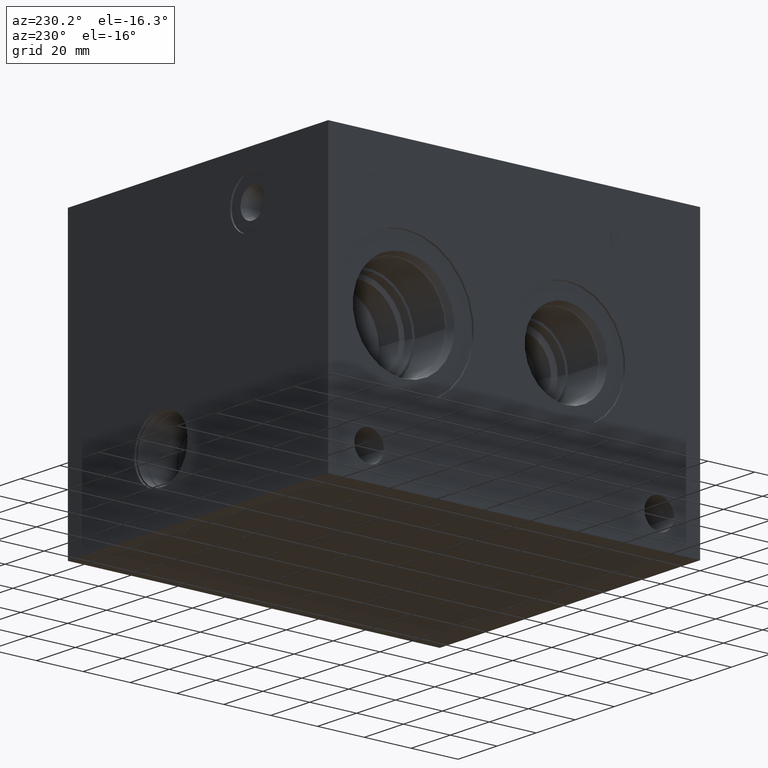
[diagram: clean part render]
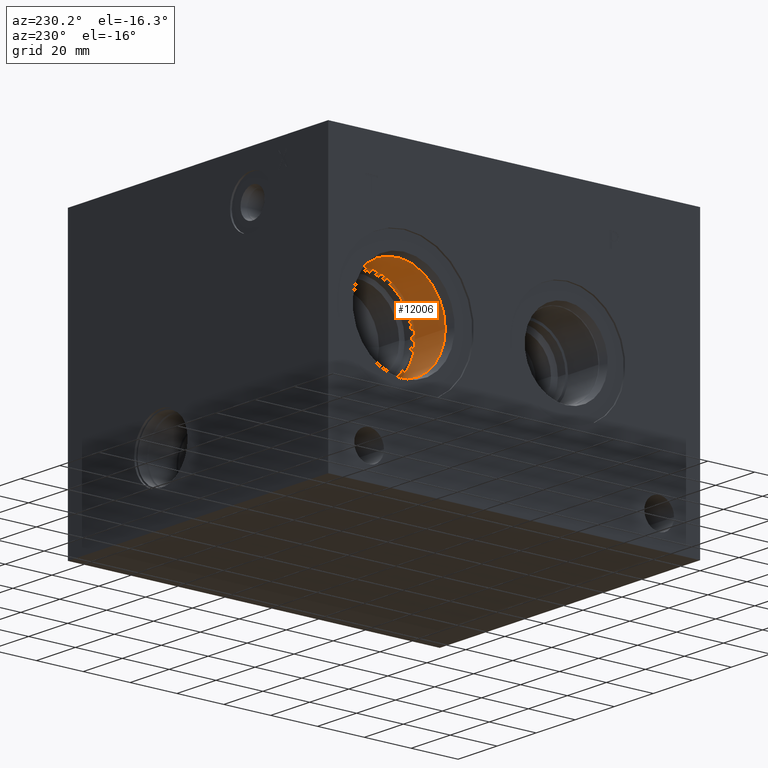
[diagram: same view with one face highlighted and labeled with its STEP entity id]
A machine part, auxiliary view. The second image highlights one B-rep face of the part: STEP entity #12006.
In plain terms, the highlighted cylindrical surface (bore or boss wall) has radius 20.64 mm, axis along (-1, 0, 0).
Its self-contained STEP definition (entity closure, byte-faithful):
#123=CYLINDRICAL_SURFACE('',#12700,20.64);
#343=CIRCLE('',#12697,20.64);
#344=CIRCLE('',#12698,20.64);
#346=CIRCLE('',#12701,20.64);
#347=CIRCLE('',#12702,20.64);
#1530=FACE_OUTER_BOUND('',#2229,.T.);
#2229=EDGE_LOOP('',(#10347,#10348,#10349,#10350,#10351,#10352));
#3362=LINE('',#20497,#4460);
#4460=VECTOR('',#15153,20.64);
#5547=VERTEX_POINT('',#20487);
#5548=VERTEX_POINT('',#20488);
#5550=VERTEX_POINT('',#20494);
#5551=VERTEX_POINT('',#20495);
#7186=EDGE_CURVE('',#5547,#5548,#343,.T.);
#7187=EDGE_CURVE('',#5548,#5547,#344,.T.);
#7189=EDGE_CURVE('',#5550,#5551,#346,.T.);
#7190=EDGE_CURVE('',#5550,#5548,#3362,.T.);
#7191=EDGE_CURVE('',#5551,#5550,#347,.T.);
#10347=ORIENTED_EDGE('',*,*,#7189,.F.);
#10348=ORIENTED_EDGE('',*,*,#7190,.T.);
#10349=ORIENTED_EDGE('',*,*,#7186,.F.);
#10350=ORIENTED_EDGE('',*,*,#7187,.F.);
#10351=ORIENTED_EDGE('',*,*,#7190,.F.);
#10352=ORIENTED_EDGE('',*,*,#7191,.F.);
#12006=ADVANCED_FACE('',(#1530),#123,.F.);
#12697=AXIS2_PLACEMENT_3D('',#20489,#15143,#15144);
#12698=AXIS2_PLACEMENT_3D('',#20490,#15145,#15146);
#12700=AXIS2_PLACEMENT_3D('',#20493,#15149,#15150);
#12701=AXIS2_PLACEMENT_3D('',#20496,#15151,#15152);
#12702=AXIS2_PLACEMENT_3D('',#20498,#15154,#15155);
#15143=DIRECTION('center_axis',(-1.,0.,0.));
#15144=DIRECTION('ref_axis',(0.,1.,0.));
#15145=DIRECTION('center_axis',(-1.,0.,0.));
#15146=DIRECTION('ref_axis',(0.,1.,0.));
#15149=DIRECTION('center_axis',(-1.,0.,0.));
#15150=DIRECTION('ref_axis',(0.,1.,0.));
#15151=DIRECTION('center_axis',(1.,0.,0.));
#15152=DIRECTION('ref_axis',(0.,1.,0.));
#15153=DIRECTION('',(1.,0.,0.));
#15154=DIRECTION('center_axis',(1.,0.,0.));
#15155=DIRECTION('ref_axis',(0.,1.,0.));
#20487=CARTESIAN_POINT('',(19.8374,146.4716,60.325));
#20488=CARTESIAN_POINT('',(19.8374,105.1916,60.325));
#20489=CARTESIAN_POINT('Origin',(19.8374,125.8316,60.325));
#20490=CARTESIAN_POINT('Origin',(19.8374,125.8316,60.325));
#20493=CARTESIAN_POINT('Origin',(9.9187,125.8316,60.325));
#20494=CARTESIAN_POINT('',(4.3028,105.1916,60.325));
#20495=CARTESIAN_POINT('',(4.3028,125.8316,39.685));
#20496=CARTESIAN_POINT('Origin',(4.3028,125.8316,60.325));
#20497=CARTESIAN_POINT('',(9.9187,105.1916,60.325));
#20498=CARTESIAN_POINT('Origin',(4.3028,125.8316,60.325));